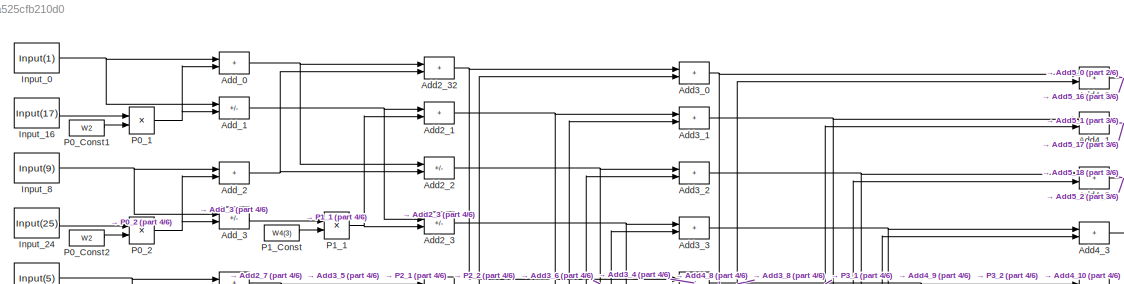
[diagram: root canvas - part 1/6, top left region]
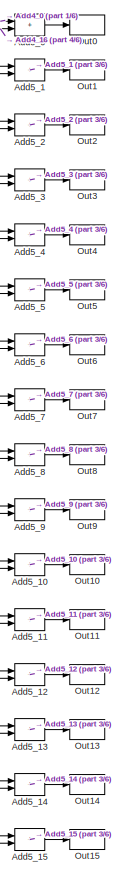
[diagram: root canvas - part 2/6, top right region]
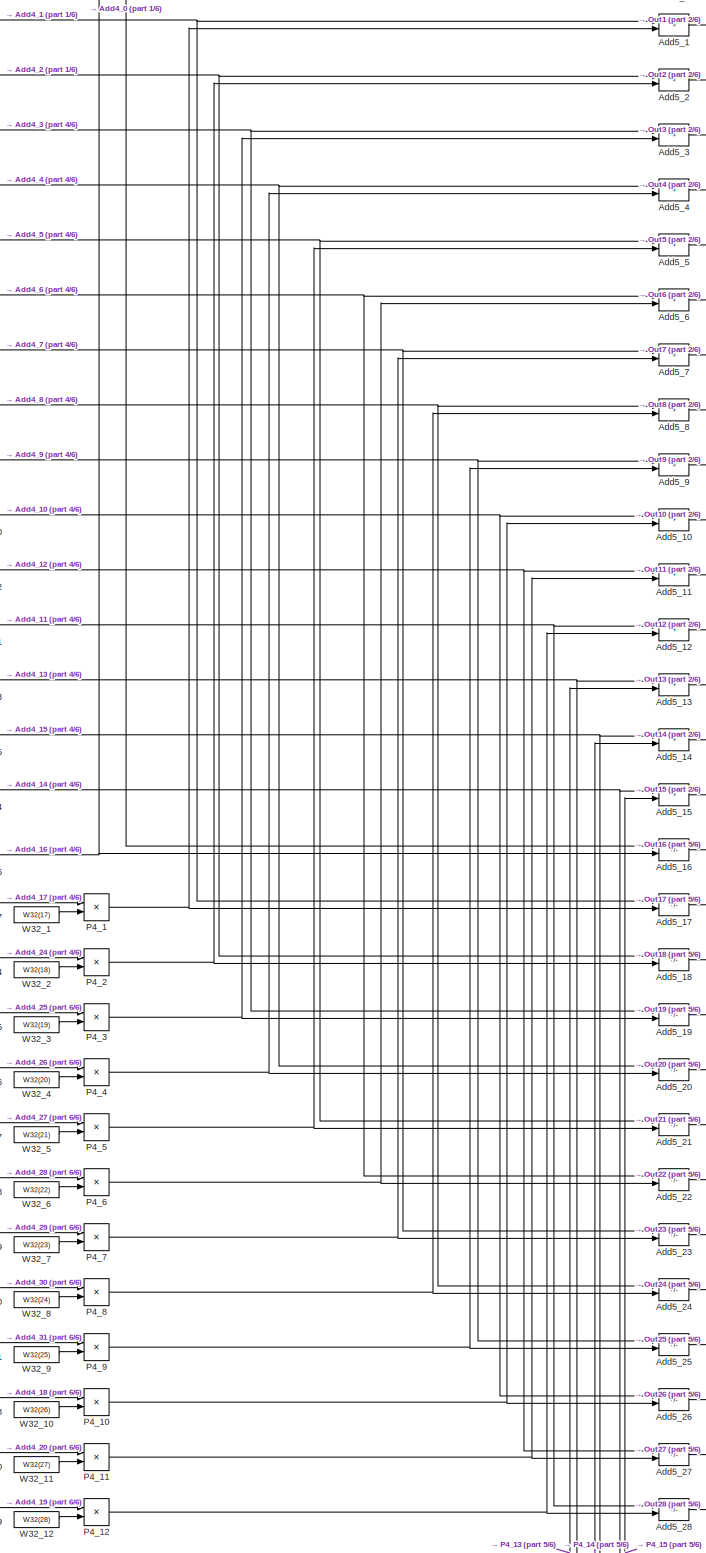
[diagram: root canvas - part 3/6, right side, full height]
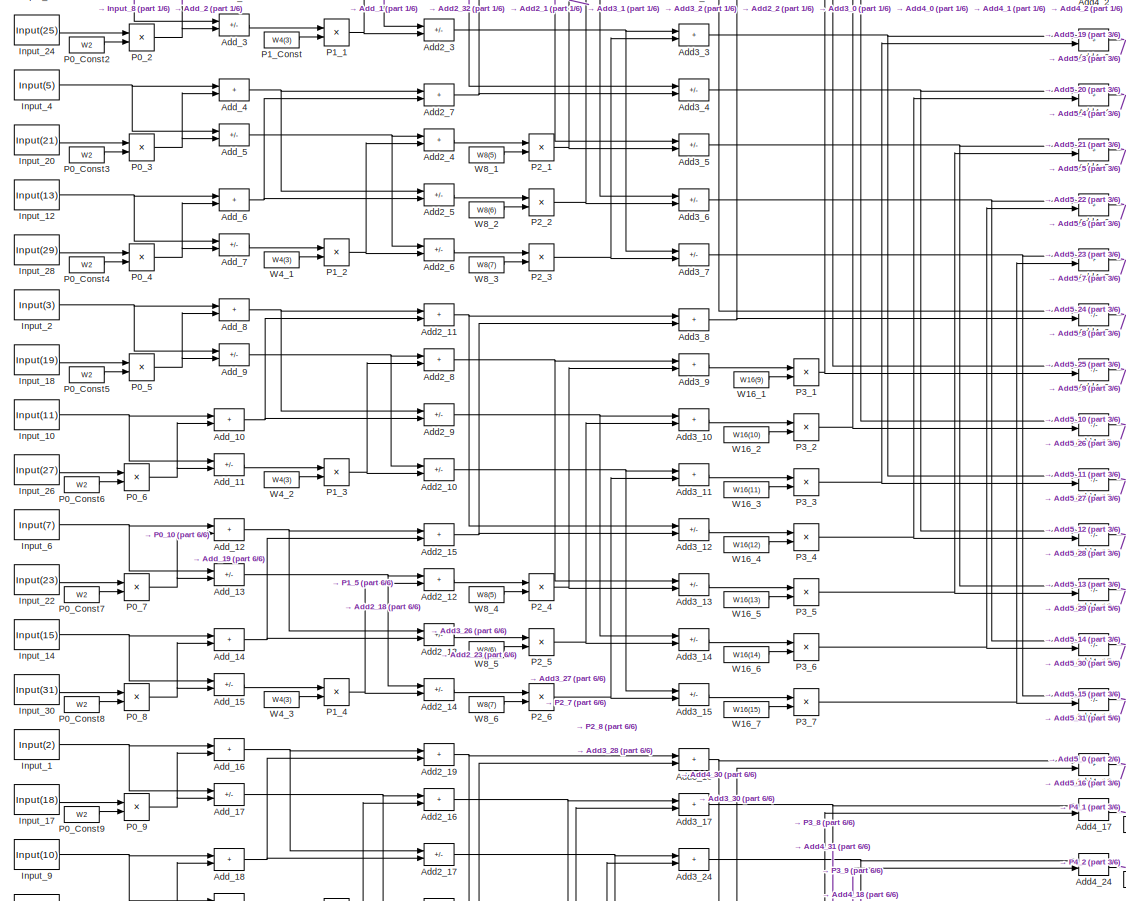
[diagram: root canvas - part 4/6, middle left region]
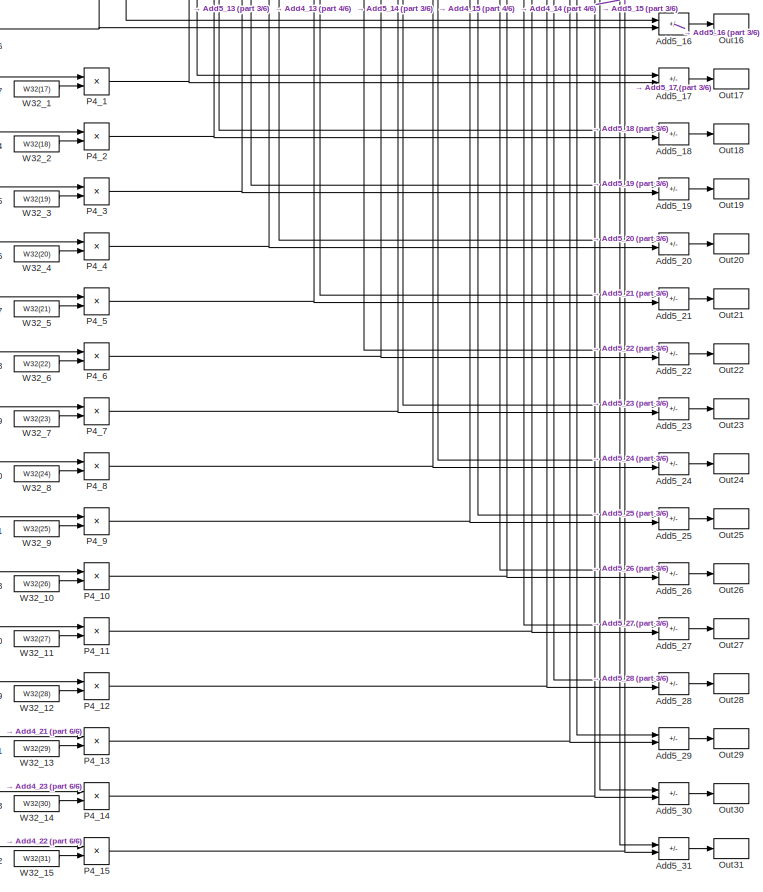
[diagram: root canvas - part 5/6, bottom right region]
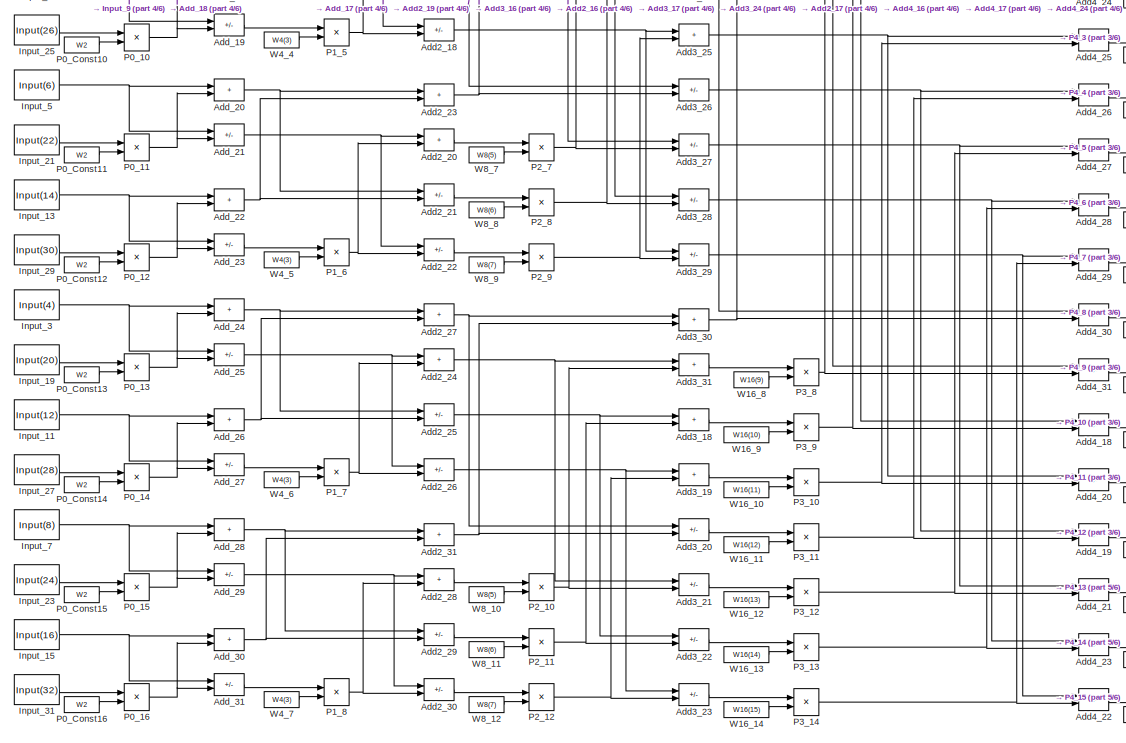
[diagram: root canvas - part 6/6, bottom left region]
MODEL slx_a525cfb210d0
KIND model
CONFIG AbsTol = auto
CONFIG EnableMultiTasking = off
CONFIG FixedStep = auto
CONFIG MaxStep = auto
CONFIG MinStep = auto
CONFIG RelTol = 1e-3
CONFIG SampleTimeConstraint = Unconstrained
CONFIG SolverName = VariableStepAuto
CONFIG StartTime = 0.0
CONFIG StopTime = 0.00001
BLOCK [Sum] Add2_1
  AccumDataTypeStr = fixdt(1,N_bits,W_bits-1)
  IconShape = rectangular
  InputSameDT = on
  OutDataTypeStr = fixdt(1,N_bits,W_bits-1)
  Ports = [2, 1]
BLOCK [Sum] Add2_10
  AccumDataTypeStr = fixdt(1,N_bits,W_bits-1)
  IconShape = rectangular
  Inputs = +-
  OutDataTypeStr = fixdt(1,N_bits,W_bits-1)
  Ports = [2, 1]
BLOCK [Sum] Add2_11
  AccumDataTypeStr = fixdt(1,N_bits,W_bits-1)
  IconShape = rectangular
  OutDataTypeStr = fixdt(1,N_bits,W_bits-1)
  Ports = [2, 1]
BLOCK [Sum] Add2_12
  AccumDataTypeStr = fixdt(1,N_bits,W_bits-1)
  IconShape = rectangular
  InputSameDT = on
  OutDataTypeStr = fixdt(1,N_bits,W_bits-1)
  Ports = [2, 1]
BLOCK [Sum] Add2_13
  AccumDataTypeStr = fixdt(1,N_bits,W_bits-1)
  IconShape = rectangular
  Inputs = +-
  OutDataTypeStr = fixdt(1,N_bits,W_bits-1)
  Ports = [2, 1]
BLOCK [Sum] Add2_14
  AccumDataTypeStr = fixdt(1,N_bits,W_bits-1)
  IconShape = rectangular
  Inputs = +-
  OutDataTypeStr = fixdt(1,N_bits,W_bits-1)
  Ports = [2, 1]
BLOCK [Sum] Add2_15
  AccumDataTypeStr = fixdt(1,N_bits,W_bits-1)
  IconShape = rectangular
  OutDataTypeStr = fixdt(1,N_bits,W_bits-1)
  Ports = [2, 1]
BLOCK [Sum] Add2_16
  AccumDataTypeStr = fixdt(1,N_bits,W_bits-1)
  IconShape = rectangular
  InputSameDT = on
  OutDataTypeStr = fixdt(1,N_bits,W_bits-1)
  Ports = [2, 1]
BLOCK [Sum] Add2_17
  AccumDataTypeStr = fixdt(1,N_bits,W_bits-1)
  IconShape = rectangular
  Inputs = +-
  OutDataTypeStr = fixdt(1,N_bits,W_bits-1)
  Ports = [2, 1]
BLOCK [Sum] Add2_18
  AccumDataTypeStr = fixdt(1,N_bits,W_bits-1)
  IconShape = rectangular
  Inputs = +-
  OutDataTypeStr = fixdt(1,N_bits,W_bits-1)
  Ports = [2, 1]
BLOCK [Sum] Add2_19
  AccumDataTypeStr = fixdt(1,N_bits,W_bits-1)
  IconShape = rectangular
  OutDataTypeStr = fixdt(1,N_bits,W_bits-1)
  Ports = [2, 1]
BLOCK [Sum] Add2_2
  AccumDataTypeStr = fixdt(1,N_bits,W_bits-1)
  IconShape = rectangular
  Inputs = +-
  OutDataTypeStr = fixdt(1,N_bits,W_bits-1)
  Ports = [2, 1]
BLOCK [Sum] Add2_20
  AccumDataTypeStr = fixdt(1,N_bits,W_bits-1)
  IconShape = rectangular
  InputSameDT = on
  OutDataTypeStr = fixdt(1,N_bits,W_bits-1)
  Ports = [2, 1]
BLOCK [Sum] Add2_21
  AccumDataTypeStr = fixdt(1,N_bits,W_bits-1)
  IconShape = rectangular
  Inputs = +-
  OutDataTypeStr = fixdt(1,N_bits,W_bits-1)
  Ports = [2, 1]
BLOCK [Sum] Add2_22
  AccumDataTypeStr = fixdt(1,N_bits,W_bits-1)
  IconShape = rectangular
  Inputs = +-
  OutDataTypeStr = fixdt(1,N_bits,W_bits-1)
  Ports = [2, 1]
BLOCK [Sum] Add2_23
  AccumDataTypeStr = fixdt(1,N_bits,W_bits-1)
  IconShape = rectangular
  OutDataTypeStr = fixdt(1,N_bits,W_bits-1)
  Ports = [2, 1]
BLOCK [Sum] Add2_24
  AccumDataTypeStr = fixdt(1,N_bits,W_bits-1)
  IconShape = rectangular
  InputSameDT = on
  OutDataTypeStr = fixdt(1,N_bits,W_bits-1)
  Ports = [2, 1]
BLOCK [Sum] Add2_25
  AccumDataTypeStr = fixdt(1,N_bits,W_bits-1)
  IconShape = rectangular
  Inputs = +-
  OutDataTypeStr = fixdt(1,N_bits,W_bits-1)
  Ports = [2, 1]
BLOCK [Sum] Add2_26
  AccumDataTypeStr = fixdt(1,N_bits,W_bits-1)
  IconShape = rectangular
  Inputs = +-
  OutDataTypeStr = fixdt(1,N_bits,W_bits-1)
  Ports = [2, 1]
BLOCK [Sum] Add2_27
  AccumDataTypeStr = fixdt(1,N_bits,W_bits-1)
  IconShape = rectangular
  OutDataTypeStr = fixdt(1,N_bits,W_bits-1)
  Ports = [2, 1]
BLOCK [Sum] Add2_28
  AccumDataTypeStr = fixdt(1,N_bits,W_bits-1)
  IconShape = rectangular
  InputSameDT = on
  OutDataTypeStr = fixdt(1,N_bits,W_bits-1)
  Ports = [2, 1]
BLOCK [Sum] Add2_29
  AccumDataTypeStr = fixdt(1,N_bits,W_bits-1)
  IconShape = rectangular
  Inputs = +-
  OutDataTypeStr = fixdt(1,N_bits,W_bits-1)
  Ports = [2, 1]
BLOCK [Sum] Add2_3
  AccumDataTypeStr = fixdt(1,N_bits,W_bits-1)
  IconShape = rectangular
  Inputs = +-
  OutDataTypeStr = fixdt(1,N_bits,W_bits-1)
  Ports = [2, 1]
BLOCK [Sum] Add2_30
  AccumDataTypeStr = fixdt(1,N_bits,W_bits-1)
  IconShape = rectangular
  Inputs = +-
  OutDataTypeStr = fixdt(1,N_bits,W_bits-1)
  Ports = [2, 1]
BLOCK [Sum] Add2_31
  AccumDataTypeStr = fixdt(1,N_bits,W_bits-1)
  IconShape = rectangular
  OutDataTypeStr = fixdt(1,N_bits,W_bits-1)
  Ports = [2, 1]
BLOCK [Sum] Add2_32
  AccumDataTypeStr = fixdt(1,N_bits,W_bits-1)
  IconShape = rectangular
  OutDataTypeStr = fixdt(1,N_bits,W_bits-1)
  Ports = [2, 1]
BLOCK [Sum] Add2_4
  AccumDataTypeStr = fixdt(1,N_bits,W_bits-1)
  IconShape = rectangular
  InputSameDT = on
  OutDataTypeStr = fixdt(1,N_bits,W_bits-1)
  Ports = [2, 1]
BLOCK [Sum] Add2_5
  AccumDataTypeStr = fixdt(1,N_bits,W_bits-1)
  IconShape = rectangular
  Inputs = +-
  OutDataTypeStr = fixdt(1,N_bits,W_bits-1)
  Ports = [2, 1]
BLOCK [Sum] Add2_6
  AccumDataTypeStr = fixdt(1,N_bits,W_bits-1)
  IconShape = rectangular
  Inputs = +-
  OutDataTypeStr = fixdt(1,N_bits,W_bits-1)
  Ports = [2, 1]
BLOCK [Sum] Add2_7
  AccumDataTypeStr = fixdt(1,N_bits,W_bits-1)
  IconShape = rectangular
  OutDataTypeStr = fixdt(1,N_bits,W_bits-1)
  Ports = [2, 1]
BLOCK [Sum] Add2_8
  AccumDataTypeStr = fixdt(1,N_bits,W_bits-1)
  IconShape = rectangular
  InputSameDT = on
  OutDataTypeStr = fixdt(1,N_bits,W_bits-1)
  Ports = [2, 1]
BLOCK [Sum] Add2_9
  AccumDataTypeStr = fixdt(1,N_bits,W_bits-1)
  IconShape = rectangular
  Inputs = +-
  OutDataTypeStr = fixdt(1,N_bits,W_bits-1)
  Ports = [2, 1]
BLOCK [Sum] Add3_0
  AccumDataTypeStr = fixdt(1,N_bits,W_bits-1)
  IconShape = rectangular
  OutDataTypeStr = fixdt(1,N_bits,W_bits-1)
  Ports = [2, 1]
BLOCK [Sum] Add3_1
  AccumDataTypeStr = fixdt(1,N_bits,W_bits-1)
  IconShape = rectangular
  OutDataTypeStr = fixdt(1,N_bits,W_bits-1)
  Ports = [2, 1]
BLOCK [Sum] Add3_10
  AccumDataTypeStr = fixdt(1,N_bits,W_bits-1)
  IconShape = rectangular
  OutDataTypeStr = fixdt(1,N_bits,W_bits-1)
  Ports = [2, 1]
BLOCK [Sum] Add3_11
  AccumDataTypeStr = fixdt(1,N_bits,W_bits-1)
  IconShape = rectangular
  OutDataTypeStr = fixdt(1,N_bits,W_bits-1)
  Ports = [2, 1]
BLOCK [Sum] Add3_12
  AccumDataTypeStr = fixdt(1,N_bits,W_bits-1)
  IconShape = rectangular
  Inputs = +-
  OutDataTypeStr = fixdt(1,N_bits,W_bits-1)
  Ports = [2, 1]
BLOCK [Sum] Add3_13
  AccumDataTypeStr = fixdt(1,N_bits,W_bits-1)
  IconShape = rectangular
  Inputs = +-
  OutDataTypeStr = fixdt(1,N_bits,W_bits-1)
  Ports = [2, 1]
BLOCK [Sum] Add3_14
  AccumDataTypeStr = fixdt(1,N_bits,W_bits-1)
  IconShape = rectangular
  Inputs = +-
  OutDataTypeStr = fixdt(1,N_bits,W_bits-1)
  Ports = [2, 1]
BLOCK [Sum] Add3_15
  AccumDataTypeStr = fixdt(1,N_bits,W_bits-1)
  IconShape = rectangular
  Inputs = +-
  OutDataTypeStr = fixdt(1,N_bits,W_bits-1)
  Ports = [2, 1]
BLOCK [Sum] Add3_16
  AccumDataTypeStr = fixdt(1,N_bits,W_bits-1)
  IconShape = rectangular
  OutDataTypeStr = fixdt(1,N_bits,W_bits-1)
  Ports = [2, 1]
BLOCK [Sum] Add3_17
  AccumDataTypeStr = fixdt(1,N_bits,W_bits-1)
  IconShape = rectangular
  OutDataTypeStr = fixdt(1,N_bits,W_bits-1)
  Ports = [2, 1]
BLOCK [Sum] Add3_18
  AccumDataTypeStr = fixdt(1,N_bits,W_bits-1)
  IconShape = rectangular
  OutDataTypeStr = fixdt(1,N_bits,W_bits-1)
  Ports = [2, 1]
BLOCK [Sum] Add3_19
  AccumDataTypeStr = fixdt(1,N_bits,W_bits-1)
  IconShape = rectangular
  OutDataTypeStr = fixdt(1,N_bits,W_bits-1)
  Ports = [2, 1]
BLOCK [Sum] Add3_2
  AccumDataTypeStr = fixdt(1,N_bits,W_bits-1)
  IconShape = rectangular
  OutDataTypeStr = fixdt(1,N_bits,W_bits-1)
  Ports = [2, 1]
BLOCK [Sum] Add3_20
  AccumDataTypeStr = fixdt(1,N_bits,W_bits-1)
  IconShape = rectangular
  Inputs = +-
  OutDataTypeStr = fixdt(1,N_bits,W_bits-1)
  Ports = [2, 1]
BLOCK [Sum] Add3_21
  AccumDataTypeStr = fixdt(1,N_bits,W_bits-1)
  IconShape = rectangular
  Inputs = +-
  OutDataTypeStr = fixdt(1,N_bits,W_bits-1)
  Ports = [2, 1]
BLOCK [Sum] Add3_22
  AccumDataTypeStr = fixdt(1,N_bits,W_bits-1)
  IconShape = rectangular
  Inputs = +-
  OutDataTypeStr = fixdt(1,N_bits,W_bits-1)
  Ports = [2, 1]
BLOCK [Sum] Add3_23
  AccumDataTypeStr = fixdt(1,N_bits,W_bits-1)
  IconShape = rectangular
  Inputs = +-
  OutDataTypeStr = fixdt(1,N_bits,W_bits-1)
  Ports = [2, 1]
BLOCK [Sum] Add3_24
  AccumDataTypeStr = fixdt(1,N_bits,W_bits-1)
  IconShape = rectangular
  OutDataTypeStr = fixdt(1,N_bits,W_bits-1)
  Ports = [2, 1]
BLOCK [Sum] Add3_25
  AccumDataTypeStr = fixdt(1,N_bits,W_bits-1)
  IconShape = rectangular
  OutDataTypeStr = fixdt(1,N_bits,W_bits-1)
  Ports = [2, 1]
BLOCK [Sum] Add3_26
  AccumDataTypeStr = fixdt(1,N_bits,W_bits-1)
  IconShape = rectangular
  Inputs = +-
  OutDataTypeStr = fixdt(1,N_bits,W_bits-1)
  Ports = [2, 1]
BLOCK [Sum] Add3_27
  AccumDataTypeStr = fixdt(1,N_bits,W_bits-1)
  IconShape = rectangular
  Inputs = +-
  OutDataTypeStr = fixdt(1,N_bits,W_bits-1)
  Ports = [2, 1]
BLOCK [Sum] Add3_28
  AccumDataTypeStr = fixdt(1,N_bits,W_bits-1)
  IconShape = rectangular
  Inputs = +-
  OutDataTypeStr = fixdt(1,N_bits,W_bits-1)
  Ports = [2, 1]
BLOCK [Sum] Add3_29
  AccumDataTypeStr = fixdt(1,N_bits,W_bits-1)
  IconShape = rectangular
  Inputs = +-
  OutDataTypeStr = fixdt(1,N_bits,W_bits-1)
  Ports = [2, 1]
BLOCK [Sum] Add3_3
  AccumDataTypeStr = fixdt(1,N_bits,W_bits-1)
  IconShape = rectangular
  OutDataTypeStr = fixdt(1,N_bits,W_bits-1)
  Ports = [2, 1]
BLOCK [Sum] Add3_30
  AccumDataTypeStr = fixdt(1,N_bits,W_bits-1)
  IconShape = rectangular
  OutDataTypeStr = fixdt(1,N_bits,W_bits-1)
  Ports = [2, 1]
BLOCK [Sum] Add3_31
  AccumDataTypeStr = fixdt(1,N_bits,W_bits-1)
  IconShape = rectangular
  OutDataTypeStr = fixdt(1,N_bits,W_bits-1)
  Ports = [2, 1]
BLOCK [Sum] Add3_4
  AccumDataTypeStr = fixdt(1,N_bits,W_bits-1)
  IconShape = rectangular
  Inputs = +-
  OutDataTypeStr = fixdt(1,N_bits,W_bits-1)
  Ports = [2, 1]
BLOCK [Sum] Add3_5
  AccumDataTypeStr = fixdt(1,N_bits,W_bits-1)
  IconShape = rectangular
  Inputs = +-
  OutDataTypeStr = fixdt(1,N_bits,W_bits-1)
  Ports = [2, 1]
BLOCK [Sum] Add3_6
  AccumDataTypeStr = fixdt(1,N_bits,W_bits-1)
  IconShape = rectangular
  Inputs = +-
  OutDataTypeStr = fixdt(1,N_bits,W_bits-1)
  Ports = [2, 1]
BLOCK [Sum] Add3_7
  AccumDataTypeStr = fixdt(1,N_bits,W_bits-1)
  IconShape = rectangular
  Inputs = +-
  OutDataTypeStr = fixdt(1,N_bits,W_bits-1)
  Ports = [2, 1]
BLOCK [Sum] Add3_8
  AccumDataTypeStr = fixdt(1,N_bits,W_bits-1)
  IconShape = rectangular
  OutDataTypeStr = fixdt(1,N_bits,W_bits-1)
  Ports = [2, 1]
BLOCK [Sum] Add3_9
  AccumDataTypeStr = fixdt(1,N_bits,W_bits-1)
  IconShape = rectangular
  OutDataTypeStr = fixdt(1,N_bits,W_bits-1)
  Ports = [2, 1]
BLOCK [Sum] Add4_0
  AccumDataTypeStr = fixdt(1,N_bits,W_bits-1)
  IconShape = rectangular
  OutDataTypeStr = fixdt(1,N_bits,W_bits-1)
  Ports = [2, 1]
BLOCK [Sum] Add4_1
  AccumDataTypeStr = fixdt(1,N_bits,W_bits-1)
  IconShape = rectangular
  OutDataTypeStr = fixdt(1,N_bits,W_bits-1)
  Ports = [2, 1]
BLOCK [Sum] Add4_10
  AccumDataTypeStr = fixdt(1,N_bits,W_bits-1)
  IconShape = rectangular
  Inputs = +-
  OutDataTypeStr = fixdt(1,N_bits,W_bits-1)
  Ports = [2, 1]
BLOCK [Sum] Add4_11
  AccumDataTypeStr = fixdt(1,N_bits,W_bits-1)
  IconShape = rectangular
  Inputs = +-
  OutDataTypeStr = fixdt(1,N_bits,W_bits-1)
  Ports = [2, 1]
BLOCK [Sum] Add4_12
  AccumDataTypeStr = fixdt(1,N_bits,W_bits-1)
  IconShape = rectangular
  Inputs = +-
  OutDataTypeStr = fixdt(1,N_bits,W_bits-1)
  Ports = [2, 1]
BLOCK [Sum] Add4_13
  AccumDataTypeStr = fixdt(1,N_bits,W_bits-1)
  IconShape = rectangular
  Inputs = +-
  OutDataTypeStr = fixdt(1,N_bits,W_bits-1)
  Ports = [2, 1]
BLOCK [Sum] Add4_14
  AccumDataTypeStr = fixdt(1,N_bits,W_bits-1)
  IconShape = rectangular
  Inputs = +-
  OutDataTypeStr = fixdt(1,N_bits,W_bits-1)
  Ports = [2, 1]
BLOCK [Sum] Add4_15
  AccumDataTypeStr = fixdt(1,N_bits,W_bits-1)
  IconShape = rectangular
  Inputs = +-
  OutDataTypeStr = fixdt(1,N_bits,W_bits-1)
  Ports = [2, 1]
BLOCK [Sum] Add4_16
  AccumDataTypeStr = fixdt(1,N_bits,W_bits-1)
  IconShape = rectangular
  OutDataTypeStr = fixdt(1,N_bits,W_bits-1)
  Ports = [2, 1]
BLOCK [Sum] Add4_17
  AccumDataTypeStr = fixdt(1,N_bits,W_bits-1)
  IconShape = rectangular
  OutDataTypeStr = fixdt(1,N_bits,W_bits-1)
  Ports = [2, 1]
BLOCK [Sum] Add4_18
  AccumDataTypeStr = fixdt(1,N_bits,W_bits-1)
  IconShape = rectangular
  Inputs = +-
  OutDataTypeStr = fixdt(1,N_bits,W_bits-1)
  Ports = [2, 1]
BLOCK [Sum] Add4_19
  AccumDataTypeStr = fixdt(1,N_bits,W_bits-1)
  IconShape = rectangular
  Inputs = +-
  OutDataTypeStr = fixdt(1,N_bits,W_bits-1)
  Ports = [2, 1]
BLOCK [Sum] Add4_2
  AccumDataTypeStr = fixdt(1,N_bits,W_bits-1)
  IconShape = rectangular
  OutDataTypeStr = fixdt(1,N_bits,W_bits-1)
  Ports = [2, 1]
BLOCK [Sum] Add4_20
  AccumDataTypeStr = fixdt(1,N_bits,W_bits-1)
  IconShape = rectangular
  Inputs = +-
  OutDataTypeStr = fixdt(1,N_bits,W_bits-1)
  Ports = [2, 1]
BLOCK [Sum] Add4_21
  AccumDataTypeStr = fixdt(1,N_bits,W_bits-1)
  IconShape = rectangular
  Inputs = +-
  OutDataTypeStr = fixdt(1,N_bits,W_bits-1)
  Ports = [2, 1]
BLOCK [Sum] Add4_22
  AccumDataTypeStr = fixdt(1,N_bits,W_bits-1)
  IconShape = rectangular
  Inputs = +-
  OutDataTypeStr = fixdt(1,N_bits,W_bits-1)
  Ports = [2, 1]
BLOCK [Sum] Add4_23
  AccumDataTypeStr = fixdt(1,N_bits,W_bits-1)
  IconShape = rectangular
  Inputs = +-
  OutDataTypeStr = fixdt(1,N_bits,W_bits-1)
  Ports = [2, 1]
BLOCK [Sum] Add4_24
  AccumDataTypeStr = fixdt(1,N_bits,W_bits-1)
  IconShape = rectangular
  OutDataTypeStr = fixdt(1,N_bits,W_bits-1)
  Ports = [2, 1]
BLOCK [Sum] Add4_25
  AccumDataTypeStr = fixdt(1,N_bits,W_bits-1)
  IconShape = rectangular
  OutDataTypeStr = fixdt(1,N_bits,W_bits-1)
  Ports = [2, 1]
BLOCK [Sum] Add4_26
  AccumDataTypeStr = fixdt(1,N_bits,W_bits-1)
  IconShape = rectangular
  OutDataTypeStr = fixdt(1,N_bits,W_bits-1)
  Ports = [2, 1]
BLOCK [Sum] Add4_27
  AccumDataTypeStr = fixdt(1,N_bits,W_bits-1)
  IconShape = rectangular
  OutDataTypeStr = fixdt(1,N_bits,W_bits-1)
  Ports = [2, 1]
BLOCK [Sum] Add4_28
  AccumDataTypeStr = fixdt(1,N_bits,W_bits-1)
  IconShape = rectangular
  OutDataTypeStr = fixdt(1,N_bits,W_bits-1)
  Ports = [2, 1]
BLOCK [Sum] Add4_29
  AccumDataTypeStr = fixdt(1,N_bits,W_bits-1)
  IconShape = rectangular
  OutDataTypeStr = fixdt(1,N_bits,W_bits-1)
  Ports = [2, 1]
BLOCK [Sum] Add4_3
  AccumDataTypeStr = fixdt(1,N_bits,W_bits-1)
  IconShape = rectangular
  OutDataTypeStr = fixdt(1,N_bits,W_bits-1)
  Ports = [2, 1]
BLOCK [Sum] Add4_30
  AccumDataTypeStr = fixdt(1,N_bits,W_bits-1)
  IconShape = rectangular
  Inputs = +-
  OutDataTypeStr = fixdt(1,N_bits,W_bits-1)
  Ports = [2, 1]
BLOCK [Sum] Add4_31
  AccumDataTypeStr = fixdt(1,N_bits,W_bits-1)
  IconShape = rectangular
  Inputs = +-
  OutDataTypeStr = fixdt(1,N_bits,W_bits-1)
  Ports = [2, 1]
BLOCK [Sum] Add4_4
  AccumDataTypeStr = fixdt(1,N_bits,W_bits-1)
  IconShape = rectangular
  OutDataTypeStr = fixdt(1,N_bits,W_bits-1)
  Ports = [2, 1]
BLOCK [Sum] Add4_5
  AccumDataTypeStr = fixdt(1,N_bits,W_bits-1)
  IconShape = rectangular
  OutDataTypeStr = fixdt(1,N_bits,W_bits-1)
  Ports = [2, 1]
BLOCK [Sum] Add4_6
  AccumDataTypeStr = fixdt(1,N_bits,W_bits-1)
  IconShape = rectangular
  OutDataTypeStr = fixdt(1,N_bits,W_bits-1)
  Ports = [2, 1]
BLOCK [Sum] Add4_7
  AccumDataTypeStr = fixdt(1,N_bits,W_bits-1)
  IconShape = rectangular
  OutDataTypeStr = fixdt(1,N_bits,W_bits-1)
  Ports = [2, 1]
BLOCK [Sum] Add4_8
  AccumDataTypeStr = fixdt(1,N_bits,W_bits-1)
  IconShape = rectangular
  Inputs = +-
  OutDataTypeStr = fixdt(1,N_bits,W_bits-1)
  Ports = [2, 1]
BLOCK [Sum] Add4_9
  AccumDataTypeStr = fixdt(1,N_bits,W_bits-1)
  IconShape = rectangular
  Inputs = +-
  OutDataTypeStr = fixdt(1,N_bits,W_bits-1)
  Ports = [2, 1]
BLOCK [Sum] Add5_0
  AccumDataTypeStr = fixdt(1,N_bits,W_bits-1)
  IconShape = rectangular
  OutDataTypeStr = fixdt(1,N_bits,W_bits-1)
  Ports = [2, 1]
BLOCK [Sum] Add5_1
  AccumDataTypeStr = fixdt(1,N_bits,W_bits-1)
  IconShape = rectangular
  OutDataTypeStr = fixdt(1,N_bits,W_bits-1)
  Ports = [2, 1]
BLOCK [Sum] Add5_10
  AccumDataTypeStr = fixdt(1,N_bits,W_bits-1)
  IconShape = rectangular
  OutDataTypeStr = fixdt(1,N_bits,W_bits-1)
  Ports = [2, 1]
BLOCK [Sum] Add5_11
  AccumDataTypeStr = fixdt(1,N_bits,W_bits-1)
  IconShape = rectangular
  OutDataTypeStr = fixdt(1,N_bits,W_bits-1)
  Ports = [2, 1]
BLOCK [Sum] Add5_12
  AccumDataTypeStr = fixdt(1,N_bits,W_bits-1)
  IconShape = rectangular
  OutDataTypeStr = fixdt(1,N_bits,W_bits-1)
  Ports = [2, 1]
BLOCK [Sum] Add5_13
  AccumDataTypeStr = fixdt(1,N_bits,W_bits-1)
  IconShape = rectangular
  OutDataTypeStr = fixdt(1,N_bits,W_bits-1)
  Ports = [2, 1]
BLOCK [Sum] Add5_14
  AccumDataTypeStr = fixdt(1,N_bits,W_bits-1)
  IconShape = rectangular
  OutDataTypeStr = fixdt(1,N_bits,W_bits-1)
  Ports = [2, 1]
BLOCK [Sum] Add5_15
  AccumDataTypeStr = fixdt(1,N_bits,W_bits-1)
  IconShape = rectangular
  OutDataTypeStr = fixdt(1,N_bits,W_bits-1)
  Ports = [2, 1]
BLOCK [Sum] Add5_16
  AccumDataTypeStr = fixdt(1,N_bits,W_bits-1)
  IconShape = rectangular
  Inputs = +-
  OutDataTypeStr = fixdt(1,N_bits,W_bits-1)
  Ports = [2, 1]
BLOCK [Sum] Add5_17
  AccumDataTypeStr = fixdt(1,N_bits,W_bits-1)
  IconShape = rectangular
  Inputs = +-
  OutDataTypeStr = fixdt(1,N_bits,W_bits-1)
  Ports = [2, 1]
BLOCK [Sum] Add5_18
  AccumDataTypeStr = fixdt(1,N_bits,W_bits-1)
  IconShape = rectangular
  Inputs = +-
  OutDataTypeStr = fixdt(1,N_bits,W_bits-1)
  Ports = [2, 1]
BLOCK [Sum] Add5_19
  AccumDataTypeStr = fixdt(1,N_bits,W_bits-1)
  IconShape = rectangular
  Inputs = +-
  OutDataTypeStr = fixdt(1,N_bits,W_bits-1)
  Ports = [2, 1]
BLOCK [Sum] Add5_2
  AccumDataTypeStr = fixdt(1,N_bits,W_bits-1)
  IconShape = rectangular
  OutDataTypeStr = fixdt(1,N_bits,W_bits-1)
  Ports = [2, 1]
BLOCK [Sum] Add5_20
  AccumDataTypeStr = fixdt(1,N_bits,W_bits-1)
  IconShape = rectangular
  Inputs = +-
  OutDataTypeStr = fixdt(1,N_bits,W_bits-1)
  Ports = [2, 1]
BLOCK [Sum] Add5_21
  AccumDataTypeStr = fixdt(1,N_bits,W_bits-1)
  IconShape = rectangular
  Inputs = +-
  OutDataTypeStr = fixdt(1,N_bits,W_bits-1)
  Ports = [2, 1]
BLOCK [Sum] Add5_22
  AccumDataTypeStr = fixdt(1,N_bits,W_bits-1)
  IconShape = rectangular
  Inputs = +-
  OutDataTypeStr = fixdt(1,N_bits,W_bits-1)
  Ports = [2, 1]
BLOCK [Sum] Add5_23
  AccumDataTypeStr = fixdt(1,N_bits,W_bits-1)
  IconShape = rectangular
  Inputs = +-
  OutDataTypeStr = fixdt(1,N_bits,W_bits-1)
  Ports = [2, 1]
BLOCK [Sum] Add5_24
  AccumDataTypeStr = fixdt(1,N_bits,W_bits-1)
  IconShape = rectangular
  Inputs = +-
  OutDataTypeStr = fixdt(1,N_bits,W_bits-1)
  Ports = [2, 1]
BLOCK [Sum] Add5_25
  AccumDataTypeStr = fixdt(1,N_bits,W_bits-1)
  IconShape = rectangular
  Inputs = +-
  OutDataTypeStr = fixdt(1,N_bits,W_bits-1)
  Ports = [2, 1]
BLOCK [Sum] Add5_26
  AccumDataTypeStr = fixdt(1,N_bits,W_bits-1)
  IconShape = rectangular
  Inputs = +-
  OutDataTypeStr = fixdt(1,N_bits,W_bits-1)
  Ports = [2, 1]
BLOCK [Sum] Add5_27
  AccumDataTypeStr = fixdt(1,N_bits,W_bits-1)
  IconShape = rectangular
  Inputs = +-
  OutDataTypeStr = fixdt(1,N_bits,W_bits-1)
  Ports = [2, 1]
BLOCK [Sum] Add5_28
  AccumDataTypeStr = fixdt(1,N_bits,W_bits-1)
  IconShape = rectangular
  Inputs = +-
  OutDataTypeStr = fixdt(1,N_bits,W_bits-1)
  Ports = [2, 1]
BLOCK [Sum] Add5_29
  AccumDataTypeStr = fixdt(1,N_bits,W_bits-1)
  IconShape = rectangular
  Inputs = +-
  OutDataTypeStr = fixdt(1,N_bits,W_bits-1)
  Ports = [2, 1]
BLOCK [Sum] Add5_3
  AccumDataTypeStr = fixdt(1,N_bits,W_bits-1)
  IconShape = rectangular
  OutDataTypeStr = fixdt(1,N_bits,W_bits-1)
  Ports = [2, 1]
BLOCK [Sum] Add5_30
  AccumDataTypeStr = fixdt(1,N_bits,W_bits-1)
  IconShape = rectangular
  Inputs = +-
  OutDataTypeStr = fixdt(1,N_bits,W_bits-1)
  Ports = [2, 1]
BLOCK [Sum] Add5_31
  AccumDataTypeStr = fixdt(1,N_bits,W_bits-1)
  IconShape = rectangular
  Inputs = +-
  OutDataTypeStr = fixdt(1,N_bits,W_bits-1)
  Ports = [2, 1]
BLOCK [Sum] Add5_4
  AccumDataTypeStr = fixdt(1,N_bits,W_bits-1)
  IconShape = rectangular
  OutDataTypeStr = fixdt(1,N_bits,W_bits-1)
  Ports = [2, 1]
BLOCK [Sum] Add5_5
  AccumDataTypeStr = fixdt(1,N_bits,W_bits-1)
  IconShape = rectangular
  OutDataTypeStr = fixdt(1,N_bits,W_bits-1)
  Ports = [2, 1]
BLOCK [Sum] Add5_6
  AccumDataTypeStr = fixdt(1,N_bits,W_bits-1)
  IconShape = rectangular
  OutDataTypeStr = fixdt(1,N_bits,W_bits-1)
  Ports = [2, 1]
BLOCK [Sum] Add5_7
  AccumDataTypeStr = fixdt(1,N_bits,W_bits-1)
  IconShape = rectangular
  OutDataTypeStr = fixdt(1,N_bits,W_bits-1)
  Ports = [2, 1]
BLOCK [Sum] Add5_8
  AccumDataTypeStr = fixdt(1,N_bits,W_bits-1)
  IconShape = rectangular
  OutDataTypeStr = fixdt(1,N_bits,W_bits-1)
  Ports = [2, 1]
BLOCK [Sum] Add5_9
  AccumDataTypeStr = fixdt(1,N_bits,W_bits-1)
  IconShape = rectangular
  OutDataTypeStr = fixdt(1,N_bits,W_bits-1)
  Ports = [2, 1]
BLOCK [Sum] Add_0
  AccumDataTypeStr = fixdt(1,N_bits,W_bits-1)
  IconShape = rectangular
  OutDataTypeStr = fixdt(1,N_bits,W_bits-1)
  Ports = [2, 1]
BLOCK [Sum] Add_1
  AccumDataTypeStr = fixdt(1,N_bits,W_bits-1)
  IconShape = rectangular
  Inputs = +-
  OutDataTypeStr = fixdt(1,N_bits,W_bits-1)
  Ports = [2, 1]
BLOCK [Sum] Add_10
  AccumDataTypeStr = fixdt(1,N_bits,W_bits-1)
  IconShape = rectangular
  OutDataTypeStr = fixdt(1,N_bits,W_bits-1)
  Ports = [2, 1]
BLOCK [Sum] Add_11
  AccumDataTypeStr = fixdt(1,N_bits,W_bits-1)
  IconShape = rectangular
  Inputs = +-
  OutDataTypeStr = fixdt(1,N_bits,W_bits-1)
  Ports = [2, 1]
BLOCK [Sum] Add_12
  AccumDataTypeStr = fixdt(1,N_bits,W_bits-1)
  IconShape = rectangular
  OutDataTypeStr = fixdt(1,N_bits,W_bits-1)
  Ports = [2, 1]
BLOCK [Sum] Add_13
  AccumDataTypeStr = fixdt(1,N_bits,W_bits-1)
  IconShape = rectangular
  Inputs = +-
  OutDataTypeStr = fixdt(1,N_bits,W_bits-1)
  Ports = [2, 1]
BLOCK [Sum] Add_14
  AccumDataTypeStr = fixdt(1,N_bits,W_bits-1)
  IconShape = rectangular
  OutDataTypeStr = fixdt(1,N_bits,W_bits-1)
  Ports = [2, 1]
BLOCK [Sum] Add_15
  AccumDataTypeStr = fixdt(1,N_bits,W_bits-1)
  IconShape = rectangular
  Inputs = +-
  OutDataTypeStr = fixdt(1,N_bits,W_bits-1)
  Ports = [2, 1]
BLOCK [Sum] Add_16
  AccumDataTypeStr = fixdt(1,N_bits,W_bits-1)
  IconShape = rectangular
  OutDataTypeStr = fixdt(1,N_bits,W_bits-1)
  Ports = [2, 1]
BLOCK [Sum] Add_17
  AccumDataTypeStr = fixdt(1,N_bits,W_bits-1)
  IconShape = rectangular
  Inputs = +-
  OutDataTypeStr = fixdt(1,N_bits,W_bits-1)
  Ports = [2, 1]
BLOCK [Sum] Add_18
  AccumDataTypeStr = fixdt(1,N_bits,W_bits-1)
  IconShape = rectangular
  OutDataTypeStr = fixdt(1,N_bits,W_bits-1)
  Ports = [2, 1]
BLOCK [Sum] Add_19
  AccumDataTypeStr = fixdt(1,N_bits,W_bits-1)
  IconShape = rectangular
  Inputs = +-
  OutDataTypeStr = fixdt(1,N_bits,W_bits-1)
  Ports = [2, 1]
BLOCK [Sum] Add_2
  AccumDataTypeStr = fixdt(1,N_bits,W_bits-1)
  IconShape = rectangular
  OutDataTypeStr = fixdt(1,N_bits,W_bits-1)
  Ports = [2, 1]
BLOCK [Sum] Add_20
  AccumDataTypeStr = fixdt(1,N_bits,W_bits-1)
  IconShape = rectangular
  OutDataTypeStr = fixdt(1,N_bits,W_bits-1)
  Ports = [2, 1]
BLOCK [Sum] Add_21
  AccumDataTypeStr = fixdt(1,N_bits,W_bits-1)
  IconShape = rectangular
  Inputs = +-
  OutDataTypeStr = fixdt(1,N_bits,W_bits-1)
  Ports = [2, 1]
BLOCK [Sum] Add_22
  AccumDataTypeStr = fixdt(1,N_bits,W_bits-1)
  IconShape = rectangular
  OutDataTypeStr = fixdt(1,N_bits,W_bits-1)
  Ports = [2, 1]
BLOCK [Sum] Add_23
  AccumDataTypeStr = fixdt(1,N_bits,W_bits-1)
  IconShape = rectangular
  Inputs = +-
  OutDataTypeStr = fixdt(1,N_bits,W_bits-1)
  Ports = [2, 1]
BLOCK [Sum] Add_24
  AccumDataTypeStr = fixdt(1,N_bits,W_bits-1)
  IconShape = rectangular
  OutDataTypeStr = fixdt(1,N_bits,W_bits-1)
  Ports = [2, 1]
BLOCK [Sum] Add_25
  AccumDataTypeStr = fixdt(1,N_bits,W_bits-1)
  IconShape = rectangular
  Inputs = +-
  OutDataTypeStr = fixdt(1,N_bits,W_bits-1)
  Ports = [2, 1]
BLOCK [Sum] Add_26
  AccumDataTypeStr = fixdt(1,N_bits,W_bits-1)
  IconShape = rectangular
  OutDataTypeStr = fixdt(1,N_bits,W_bits-1)
  Ports = [2, 1]
BLOCK [Sum] Add_27
  AccumDataTypeStr = fixdt(1,N_bits,W_bits-1)
  IconShape = rectangular
  Inputs = +-
  OutDataTypeStr = fixdt(1,N_bits,W_bits-1)
  Ports = [2, 1]
BLOCK [Sum] Add_28
  AccumDataTypeStr = fixdt(1,N_bits,W_bits-1)
  IconShape = rectangular
  OutDataTypeStr = fixdt(1,N_bits,W_bits-1)
  Ports = [2, 1]
BLOCK [Sum] Add_29
  AccumDataTypeStr = fixdt(1,N_bits,W_bits-1)
  IconShape = rectangular
  Inputs = +-
  OutDataTypeStr = fixdt(1,N_bits,W_bits-1)
  Ports = [2, 1]
BLOCK [Sum] Add_3
  AccumDataTypeStr = fixdt(1,N_bits,W_bits-1)
  IconShape = rectangular
  Inputs = +-
  OutDataTypeStr = fixdt(1,N_bits,W_bits-1)
  Ports = [2, 1]
BLOCK [Sum] Add_30
  AccumDataTypeStr = fixdt(1,N_bits,W_bits-1)
  IconShape = rectangular
  OutDataTypeStr = fixdt(1,N_bits,W_bits-1)
  Ports = [2, 1]
BLOCK [Sum] Add_31
  AccumDataTypeStr = fixdt(1,N_bits,W_bits-1)
  IconShape = rectangular
  Inputs = +-
  OutDataTypeStr = fixdt(1,N_bits,W_bits-1)
  Ports = [2, 1]
BLOCK [Sum] Add_4
  AccumDataTypeStr = fixdt(1,N_bits,W_bits-1)
  IconShape = rectangular
  OutDataTypeStr = fixdt(1,N_bits,W_bits-1)
  Ports = [2, 1]
BLOCK [Sum] Add_5
  AccumDataTypeStr = fixdt(1,N_bits,W_bits-1)
  IconShape = rectangular
  Inputs = +-
  OutDataTypeStr = fixdt(1,N_bits,W_bits-1)
  Ports = [2, 1]
BLOCK [Sum] Add_6
  AccumDataTypeStr = fixdt(1,N_bits,W_bits-1)
  IconShape = rectangular
  OutDataTypeStr = fixdt(1,N_bits,W_bits-1)
  Ports = [2, 1]
BLOCK [Sum] Add_7
  AccumDataTypeStr = fixdt(1,N_bits,W_bits-1)
  IconShape = rectangular
  Inputs = +-
  OutDataTypeStr = fixdt(1,N_bits,W_bits-1)
  Ports = [2, 1]
BLOCK [Sum] Add_8
  AccumDataTypeStr = fixdt(1,N_bits,W_bits-1)
  IconShape = rectangular
  OutDataTypeStr = fixdt(1,N_bits,W_bits-1)
  Ports = [2, 1]
BLOCK [Sum] Add_9
  AccumDataTypeStr = fixdt(1,N_bits,W_bits-1)
  IconShape = rectangular
  Inputs = +-
  OutDataTypeStr = fixdt(1,N_bits,W_bits-1)
  Ports = [2, 1]
BLOCK [Constant] Input_0
  Value = Input(1)
BLOCK [Constant] Input_1
  Value = Input(2)
BLOCK [Constant] Input_10
  Value = Input(11)
BLOCK [Constant] Input_11
  Value = Input(12)
BLOCK [Constant] Input_12
  Value = Input(13)
BLOCK [Constant] Input_13
  Value = Input(14)
BLOCK [Constant] Input_14
  Value = Input(15)
BLOCK [Constant] Input_15
  Value = Input(16)
BLOCK [Constant] Input_16
  Value = Input(17)
BLOCK [Constant] Input_17
  Value = Input(18)
BLOCK [Constant] Input_18
  Value = Input(19)
BLOCK [Constant] Input_19
  Value = Input(20)
BLOCK [Constant] Input_2
  Value = Input(3)
BLOCK [Constant] Input_20
  Value = Input(21)
BLOCK [Constant] Input_21
  Value = Input(22)
BLOCK [Constant] Input_22
  Value = Input(23)
BLOCK [Constant] Input_23
  Value = Input(24)
BLOCK [Constant] Input_24
  Value = Input(25)
BLOCK [Constant] Input_25
  Value = Input(26)
BLOCK [Constant] Input_26
  Value = Input(27)
BLOCK [Constant] Input_27
  Value = Input(28)
BLOCK [Constant] Input_28
  Value = Input(29)
BLOCK [Constant] Input_29
  Value = Input(30)
BLOCK [Constant] Input_3
  Value = Input(4)
BLOCK [Constant] Input_30
  Value = Input(31)
BLOCK [Constant] Input_31
  Value = Input(32)
BLOCK [Constant] Input_4
  Value = Input(5)
BLOCK [Constant] Input_5
  Value = Input(6)
BLOCK [Constant] Input_6
  Value = Input(7)
BLOCK [Constant] Input_7
  Value = Input(8)
BLOCK [Constant] Input_8
  Value = Input(9)
BLOCK [Constant] Input_9
  Value = Input(10)
BLOCK [ToWorkspace] Out0
  FixptAsFi = on
  MaxDataPoints = 1
  Ports = [1]
  SampleTime = 1
  Save2DSignal = 2-D array (concatenate along first dimension)
  VariableName = a
BLOCK [ToWorkspace] Out1
  FixptAsFi = on
  MaxDataPoints = 1
  Ports = [1]
  SampleTime = 1
  Save2DSignal = 2-D array (concatenate along first dimension)
  VariableName = a1
BLOCK [ToWorkspace] Out10
  FixptAsFi = on
  MaxDataPoints = 1
  Ports = [1]
  SampleTime = 1
  Save2DSignal = 2-D array (concatenate along first dimension)
  VariableName = b
BLOCK [ToWorkspace] Out11
  FixptAsFi = on
  MaxDataPoints = 1
  Ports = [1]
  SampleTime = 1
  Save2DSignal = 2-D array (concatenate along first dimension)
  VariableName = b1
BLOCK [ToWorkspace] Out12
  FixptAsFi = on
  MaxDataPoints = 1
  Ports = [1]
  SampleTime = 1
  Save2DSignal = 2-D array (concatenate along first dimension)
  VariableName = b2
BLOCK [ToWorkspace] Out13
  FixptAsFi = on
  MaxDataPoints = 1
  Ports = [1]
  SampleTime = 1
  Save2DSignal = 2-D array (concatenate along first dimension)
  VariableName = b3
BLOCK [ToWorkspace] Out14
  FixptAsFi = on
  MaxDataPoints = 1
  Ports = [1]
  SampleTime = 1
  Save2DSignal = 2-D array (concatenate along first dimension)
  VariableName = b4
BLOCK [ToWorkspace] Out15
  FixptAsFi = on
  MaxDataPoints = 1
  Ports = [1]
  SampleTime = 1
  Save2DSignal = 2-D array (concatenate along first dimension)
  VariableName = b5
BLOCK [ToWorkspace] Out16
  FixptAsFi = on
  MaxDataPoints = 1
  Ports = [1]
  SampleTime = 1
  Save2DSignal = 2-D array (concatenate along first dimension)
  VariableName = b6
BLOCK [ToWorkspace] Out17
  FixptAsFi = on
  MaxDataPoints = 1
  Ports = [1]
  SampleTime = 1
  Save2DSignal = 2-D array (concatenate along first dimension)
  VariableName = b7
BLOCK [ToWorkspace] Out18
  FixptAsFi = on
  MaxDataPoints = 1
  Ports = [1]
  SampleTime = 1
  Save2DSignal = 2-D array (concatenate along first dimension)
  VariableName = b8
BLOCK [ToWorkspace] Out19
  FixptAsFi = on
  MaxDataPoints = 1
  Ports = [1]
  SampleTime = 1
  Save2DSignal = 2-D array (concatenate along first dimension)
  VariableName = b9
BLOCK [ToWorkspace] Out2
  FixptAsFi = on
  MaxDataPoints = 1
  Ports = [1]
  SampleTime = 1
  Save2DSignal = 2-D array (concatenate along first dimension)
  VariableName = a2
BLOCK [ToWorkspace] Out20
  FixptAsFi = on
  MaxDataPoints = 1
  Ports = [1]
  SampleTime = 1
  Save2DSignal = 2-D array (concatenate along first dimension)
  VariableName = c
BLOCK [ToWorkspace] Out21
  FixptAsFi = on
  MaxDataPoints = 1
  Ports = [1]
  SampleTime = 1
  Save2DSignal = 2-D array (concatenate along first dimension)
  VariableName = c1
BLOCK [ToWorkspace] Out22
  FixptAsFi = on
  MaxDataPoints = 1
  Ports = [1]
  SampleTime = 1
  Save2DSignal = 2-D array (concatenate along first dimension)
  VariableName = c2
BLOCK [ToWorkspace] Out23
  FixptAsFi = on
  MaxDataPoints = 1
  Ports = [1]
  SampleTime = 1
  Save2DSignal = 2-D array (concatenate along first dimension)
  VariableName = c3
BLOCK [ToWorkspace] Out24
  FixptAsFi = on
  MaxDataPoints = 1
  Ports = [1]
  SampleTime = 1
  Save2DSignal = 2-D array (concatenate along first dimension)
  VariableName = c4
BLOCK [ToWorkspace] Out25
  FixptAsFi = on
  MaxDataPoints = 1
  Ports = [1]
  SampleTime = 1
  Save2DSignal = 2-D array (concatenate along first dimension)
  VariableName = c5
BLOCK [ToWorkspace] Out26
  FixptAsFi = on
  MaxDataPoints = 1
  Ports = [1]
  SampleTime = 1
  Save2DSignal = 2-D array (concatenate along first dimension)
  VariableName = c6
BLOCK [ToWorkspace] Out27
  FixptAsFi = on
  MaxDataPoints = 1
  Ports = [1]
  SampleTime = 1
  Save2DSignal = 2-D array (concatenate along first dimension)
  VariableName = c7
BLOCK [ToWorkspace] Out28
  FixptAsFi = on
  MaxDataPoints = 1
  Ports = [1]
  SampleTime = 1
  Save2DSignal = 2-D array (concatenate along first dimension)
  VariableName = c8
BLOCK [ToWorkspace] Out29
  FixptAsFi = on
  MaxDataPoints = 1
  Ports = [1]
  SampleTime = 1
  Save2DSignal = 2-D array (concatenate along first dimension)
  VariableName = c9
BLOCK [ToWorkspace] Out3
  FixptAsFi = on
  MaxDataPoints = 1
  Ports = [1]
  SampleTime = 1
  Save2DSignal = 2-D array (concatenate along first dimension)
  VariableName = a3
BLOCK [ToWorkspace] Out30
  FixptAsFi = on
  MaxDataPoints = 1
  Ports = [1]
  SampleTime = 1
  Save2DSignal = 2-D array (concatenate along first dimension)
  VariableName = d
BLOCK [ToWorkspace] Out31
  FixptAsFi = on
  MaxDataPoints = 1
  Ports = [1]
  SampleTime = 1
  Save2DSignal = 2-D array (concatenate along first dimension)
  VariableName = d1
BLOCK [ToWorkspace] Out4
  FixptAsFi = on
  MaxDataPoints = 1
  Ports = [1]
  SampleTime = 1
  Save2DSignal = 2-D array (concatenate along first dimension)
  VariableName = a4
BLOCK [ToWorkspace] Out5
  FixptAsFi = on
  MaxDataPoints = 1
  Ports = [1]
  SampleTime = 1
  Save2DSignal = 2-D array (concatenate along first dimension)
  VariableName = a5
BLOCK [ToWorkspace] Out6
  FixptAsFi = on
  MaxDataPoints = 1
  Ports = [1]
  SampleTime = 1
  Save2DSignal = 2-D array (concatenate along first dimension)
  VariableName = a6
BLOCK [ToWorkspace] Out7
  FixptAsFi = on
  MaxDataPoints = 1
  Ports = [1]
  SampleTime = 1
  Save2DSignal = 2-D array (concatenate along first dimension)
  VariableName = a7
BLOCK [ToWorkspace] Out8
  FixptAsFi = on
  MaxDataPoints = 1
  Ports = [1]
  SampleTime = 1
  Save2DSignal = 2-D array (concatenate along first dimension)
  VariableName = a8
BLOCK [ToWorkspace] Out9
  FixptAsFi = on
  MaxDataPoints = 1
  Ports = [1]
  SampleTime = 1
  Save2DSignal = 2-D array (concatenate along first dimension)
  VariableName = a9
BLOCK [Product] P0_1
  OutDataTypeStr = fixdt(1,N_bits,W_bits-1)
  Ports = [2, 1]
BLOCK [Product] P0_10
  OutDataTypeStr = fixdt(1,N_bits,W_bits-1)
  Ports = [2, 1]
BLOCK [Product] P0_11
  OutDataTypeStr = fixdt(1,N_bits,W_bits-1)
  Ports = [2, 1]
BLOCK [Product] P0_12
  OutDataTypeStr = fixdt(1,N_bits,W_bits-1)
  Ports = [2, 1]
BLOCK [Product] P0_13
  OutDataTypeStr = fixdt(1,N_bits,W_bits-1)
  Ports = [2, 1]
BLOCK [Product] P0_14
  OutDataTypeStr = fixdt(1,N_bits,W_bits-1)
  Ports = [2, 1]
BLOCK [Product] P0_15
  OutDataTypeStr = fixdt(1,N_bits,W_bits-1)
  Ports = [2, 1]
BLOCK [Product] P0_16
  OutDataTypeStr = fixdt(1,N_bits,W_bits-1)
  Ports = [2, 1]
BLOCK [Product] P0_2
  OutDataTypeStr = fixdt(1,N_bits,W_bits-1)
  Ports = [2, 1]
BLOCK [Product] P0_3
  OutDataTypeStr = fixdt(1,N_bits,W_bits-1)
  Ports = [2, 1]
BLOCK [Product] P0_4
  OutDataTypeStr = fixdt(1,N_bits,W_bits-1)
  Ports = [2, 1]
BLOCK [Product] P0_5
  OutDataTypeStr = fixdt(1,N_bits,W_bits-1)
  Ports = [2, 1]
BLOCK [Product] P0_6
  OutDataTypeStr = fixdt(1,N_bits,W_bits-1)
  Ports = [2, 1]
BLOCK [Product] P0_7
  OutDataTypeStr = fixdt(1,N_bits,W_bits-1)
  Ports = [2, 1]
BLOCK [Product] P0_8
  OutDataTypeStr = fixdt(1,N_bits,W_bits-1)
  Ports = [2, 1]
BLOCK [Product] P0_9
  OutDataTypeStr = fixdt(1,N_bits,W_bits-1)
  Ports = [2, 1]
BLOCK [Constant] P0_Const1
  Value = W2
BLOCK [Constant] P0_Const10
  Value = W2
BLOCK [Constant] P0_Const11
  Value = W2
BLOCK [Constant] P0_Const12
  Value = W2
BLOCK [Constant] P0_Const13
  Value = W2
BLOCK [Constant] P0_Const14
  Value = W2
BLOCK [Constant] P0_Const15
  Value = W2
BLOCK [Constant] P0_Const16
  Value = W2
BLOCK [Constant] P0_Const2
  Value = W2
BLOCK [Constant] P0_Const3
  Value = W2
BLOCK [Constant] P0_Const4
  Value = W2
BLOCK [Constant] P0_Const5
  Value = W2
BLOCK [Constant] P0_Const6
  Value = W2
BLOCK [Constant] P0_Const7
  Value = W2
BLOCK [Constant] P0_Const8
  Value = W2
BLOCK [Constant] P0_Const9
  Value = W2
BLOCK [Product] P1_1
  OutDataTypeStr = fixdt(1,N_bits,W_bits-1)
  Ports = [2, 1]
BLOCK [Product] P1_2
  OutDataTypeStr = fixdt(1,N_bits,W_bits-1)
  Ports = [2, 1]
BLOCK [Product] P1_3
  OutDataTypeStr = fixdt(1,N_bits,W_bits-1)
  Ports = [2, 1]
BLOCK [Product] P1_4
  OutDataTypeStr = fixdt(1,N_bits,W_bits-1)
  Ports = [2, 1]
BLOCK [Product] P1_5
  OutDataTypeStr = fixdt(1,N_bits,W_bits-1)
  Ports = [2, 1]
BLOCK [Product] P1_6
  OutDataTypeStr = fixdt(1,N_bits,W_bits-1)
  Ports = [2, 1]
BLOCK [Product] P1_7
  OutDataTypeStr = fixdt(1,N_bits,W_bits-1)
  Ports = [2, 1]
BLOCK [Product] P1_8
  OutDataTypeStr = fixdt(1,N_bits,W_bits-1)
  Ports = [2, 1]
BLOCK [Constant] P1_Const
  Value = W4(3)
BLOCK [Product] P2_1
  OutDataTypeStr = fixdt(1,N_bits,W_bits-1)
  Ports = [2, 1]
BLOCK [Product] P2_10
  OutDataTypeStr = fixdt(1,N_bits,W_bits-1)
  Ports = [2, 1]
BLOCK [Product] P2_11
  OutDataTypeStr = fixdt(1,N_bits,W_bits-1)
  Ports = [2, 1]
BLOCK [Product] P2_12
  OutDataTypeStr = fixdt(1,N_bits,W_bits-1)
  Ports = [2, 1]
BLOCK [Product] P2_2
  OutDataTypeStr = fixdt(1,N_bits,W_bits-1)
  Ports = [2, 1]
BLOCK [Product] P2_3
  OutDataTypeStr = fixdt(1,N_bits,W_bits-1)
  Ports = [2, 1]
BLOCK [Product] P2_4
  OutDataTypeStr = fixdt(1,N_bits,W_bits-1)
  Ports = [2, 1]
BLOCK [Product] P2_5
  OutDataTypeStr = fixdt(1,N_bits,W_bits-1)
  Ports = [2, 1]
BLOCK [Product] P2_6
  OutDataTypeStr = fixdt(1,N_bits,W_bits-1)
  Ports = [2, 1]
BLOCK [Product] P2_7
  OutDataTypeStr = fixdt(1,N_bits,W_bits-1)
  Ports = [2, 1]
BLOCK [Product] P2_8
  OutDataTypeStr = fixdt(1,N_bits,W_bits-1)
  Ports = [2, 1]
BLOCK [Product] P2_9
  OutDataTypeStr = fixdt(1,N_bits,W_bits-1)
  Ports = [2, 1]
BLOCK [Product] P3_1
  OutDataTypeStr = fixdt(1,N_bits,W_bits-1)
  Ports = [2, 1]
BLOCK [Product] P3_10
  OutDataTypeStr = fixdt(1,N_bits,W_bits-1)
  Ports = [2, 1]
BLOCK [Product] P3_11
  OutDataTypeStr = fixdt(1,N_bits,W_bits-1)
  Ports = [2, 1]
BLOCK [Product] P3_12
  OutDataTypeStr = fixdt(1,N_bits,W_bits-1)
  Ports = [2, 1]
BLOCK [Product] P3_13
  OutDataTypeStr = fixdt(1,N_bits,W_bits-1)
  Ports = [2, 1]
BLOCK [Product] P3_14
  OutDataTypeStr = fixdt(1,N_bits,W_bits-1)
  Ports = [2, 1]
BLOCK [Product] P3_2
  OutDataTypeStr = fixdt(1,N_bits,W_bits-1)
  Ports = [2, 1]
BLOCK [Product] P3_3
  OutDataTypeStr = fixdt(1,N_bits,W_bits-1)
  Ports = [2, 1]
BLOCK [Product] P3_4
  OutDataTypeStr = fixdt(1,N_bits,W_bits-1)
  Ports = [2, 1]
BLOCK [Product] P3_5
  OutDataTypeStr = fixdt(1,N_bits,W_bits-1)
  Ports = [2, 1]
BLOCK [Product] P3_6
  OutDataTypeStr = fixdt(1,N_bits,W_bits-1)
  Ports = [2, 1]
BLOCK [Product] P3_7
  OutDataTypeStr = fixdt(1,N_bits,W_bits-1)
  Ports = [2, 1]
BLOCK [Product] P3_8
  OutDataTypeStr = fixdt(1,N_bits,W_bits-1)
  Ports = [2, 1]
BLOCK [Product] P3_9
  OutDataTypeStr = fixdt(1,N_bits,W_bits-1)
  Ports = [2, 1]
BLOCK [Product] P4_1
  OutDataTypeStr = fixdt(1,N_bits,W_bits-1)
  Ports = [2, 1]
BLOCK [Product] P4_10
  OutDataTypeStr = fixdt(1,N_bits,W_bits-1)
  Ports = [2, 1]
BLOCK [Product] P4_11
  OutDataTypeStr = fixdt(1,N_bits,W_bits-1)
  Ports = [2, 1]
BLOCK [Product] P4_12
  NameLocation = top
  OutDataTypeStr = fixdt(1,N_bits,W_bits-1)
  Ports = [2, 1]
BLOCK [Product] P4_13
  OutDataTypeStr = fixdt(1,N_bits,W_bits-1)
  Ports = [2, 1]
BLOCK [Product] P4_14
  OutDataTypeStr = fixdt(1,N_bits,W_bits-1)
  Ports = [2, 1]
BLOCK [Product] P4_15
  OutDataTypeStr = fixdt(1,N_bits,W_bits-1)
  Ports = [2, 1]
BLOCK [Product] P4_2
  OutDataTypeStr = fixdt(1,N_bits,W_bits-1)
  Ports = [2, 1]
BLOCK [Product] P4_3
  OutDataTypeStr = fixdt(1,N_bits,W_bits-1)
  Ports = [2, 1]
BLOCK [Product] P4_4
  NameLocation = top
  OutDataTypeStr = fixdt(1,N_bits,W_bits-1)
  Ports = [2, 1]
BLOCK [Product] P4_5
  OutDataTypeStr = fixdt(1,N_bits,W_bits-1)
  Ports = [2, 1]
BLOCK [Product] P4_6
  OutDataTypeStr = fixdt(1,N_bits,W_bits-1)
  Ports = [2, 1]
BLOCK [Product] P4_7
  OutDataTypeStr = fixdt(1,N_bits,W_bits-1)
  Ports = [2, 1]
BLOCK [Product] P4_8
  NameLocation = top
  OutDataTypeStr = fixdt(1,N_bits,W_bits-1)
  Ports = [2, 1]
BLOCK [Product] P4_9
  OutDataTypeStr = fixdt(1,N_bits,W_bits-1)
  Ports = [2, 1]
BLOCK [Constant] W16_1
  Value = W16(9)
BLOCK [Constant] W16_10
  Value = W16(11)
BLOCK [Constant] W16_11
  Value = W16(12)
BLOCK [Constant] W16_12
  Value = W16(13)
BLOCK [Constant] W16_13
  Value = W16(14)
BLOCK [Constant] W16_14
  Value = W16(15)
BLOCK [Constant] W16_2
  Value = W16(10)
BLOCK [Constant] W16_3
  Value = W16(11)
BLOCK [Constant] W16_4
  Value = W16(12)
BLOCK [Constant] W16_5
  Value = W16(13)
BLOCK [Constant] W16_6
  Value = W16(14)
BLOCK [Constant] W16_7
  Value = W16(15)
BLOCK [Constant] W16_8
  Value = W16(9)
BLOCK [Constant] W16_9
  Value = W16(10)
BLOCK [Constant] W32_1
  Value = W32(17)
BLOCK [Constant] W32_10
  Value = W32(26)
BLOCK [Constant] W32_11
  Value = W32(27)
BLOCK [Constant] W32_12
  Value = W32(28)
BLOCK [Constant] W32_13
  Value = W32(29)
BLOCK [Constant] W32_14
  Value = W32(30)
BLOCK [Constant] W32_15
  Value = W32(31)
BLOCK [Constant] W32_2
  Value = W32(18)
BLOCK [Constant] W32_3
  Value = W32(19)
BLOCK [Constant] W32_4
  Value = W32(20)
BLOCK [Constant] W32_5
  Value = W32(21)
BLOCK [Constant] W32_6
  Value = W32(22)
BLOCK [Constant] W32_7
  Value = W32(23)
BLOCK [Constant] W32_8
  Value = W32(24)
BLOCK [Constant] W32_9
  Value = W32(25)
BLOCK [Constant] W4_1
  Value = W4(3)
BLOCK [Constant] W4_2
  Value = W4(3)
BLOCK [Constant] W4_3
  Value = W4(3)
BLOCK [Constant] W4_4
  Value = W4(3)
BLOCK [Constant] W4_5
  Value = W4(3)
BLOCK [Constant] W4_6
  Value = W4(3)
BLOCK [Constant] W4_7
  Value = W4(3)
BLOCK [Constant] W8_1
  Value = W8(5)
BLOCK [Constant] W8_10
  Value = W8(5)
BLOCK [Constant] W8_11
  Value = W8(6)
BLOCK [Constant] W8_12
  Value = W8(7)
BLOCK [Constant] W8_2
  Value = W8(6)
BLOCK [Constant] W8_3
  Value = W8(7)
BLOCK [Constant] W8_4
  Value = W8(5)
BLOCK [Constant] W8_5
  Value = W8(6)
BLOCK [Constant] W8_6
  Value = W8(7)
BLOCK [Constant] W8_7
  Value = W8(5)
BLOCK [Constant] W8_8
  Value = W8(6)
BLOCK [Constant] W8_9
  Value = W8(7)
NET Add2_10:1 -> Add3_11:1, Add3_15:1
NET Add2_11:1 -> Add3_12:1, Add3_8:1
LINE Add2_12:1 -> P2_4:1
LINE Add2_13:1 -> P2_5:1
LINE Add2_14:1 -> P2_6:1
NET Add2_15:1 -> Add3_12:2, Add3_8:2
NET Add2_16:1 -> Add3_17:1, Add3_27:1
NET Add2_17:1 -> Add3_24:1, Add3_28:1
NET Add2_18:1 -> Add3_25:1, Add3_29:1
NET Add2_19:1 -> Add3_16:1, Add3_26:1
NET Add2_1:1 -> Add3_1:1, Add3_5:1
LINE Add2_20:1 -> P2_7:1
LINE Add2_21:1 -> P2_8:1
LINE Add2_22:1 -> P2_9:1
NET Add2_23:1 -> Add3_16:2, Add3_26:2
NET Add2_24:1 -> Add3_21:1, Add3_31:1
NET Add2_25:1 -> Add3_18:1, Add3_22:1
NET Add2_26:1 -> Add3_19:1, Add3_23:1
NET Add2_27:1 -> Add3_20:1, Add3_30:1
LINE Add2_28:1 -> P2_10:1
LINE Add2_29:1 -> P2_11:1
NET Add2_2:1 -> Add3_2:1, Add3_6:1
LINE Add2_30:1 -> P2_12:1
NET Add2_31:1 -> Add3_20:2, Add3_30:2
NET Add2_32:1 -> Add3_0:1, Add3_4:1
NET Add2_3:1 -> Add3_3:1, Add3_7:1
LINE Add2_4:1 -> P2_1:1
LINE Add2_5:1 -> P2_2:1
LINE Add2_6:1 -> P2_3:1
NET Add2_7:1 -> Add3_0:2, Add3_4:2
NET Add2_8:1 -> Add3_13:1, Add3_9:1
NET Add2_9:1 -> Add3_10:1, Add3_14:1
NET Add3_0:1 -> Add4_0:1, Add4_8:1
LINE Add3_10:1 -> P3_2:1
LINE Add3_11:1 -> P3_3:1
LINE Add3_12:1 -> P3_4:1
LINE Add3_13:1 -> P3_5:1
LINE Add3_14:1 -> P3_6:1
LINE Add3_15:1 -> P3_7:1
NET Add3_16:1 -> Add4_16:1, Add4_30:1
NET Add3_17:1 -> Add4_17:1, Add4_31:1
LINE Add3_18:1 -> P3_9:1
LINE Add3_19:1 -> P3_10:1
NET Add3_1:1 -> Add4_1:1, Add4_9:1
LINE Add3_20:1 -> P3_11:1
LINE Add3_21:1 -> P3_12:1
LINE Add3_22:1 -> P3_13:1
LINE Add3_23:1 -> P3_14:1
NET Add3_24:1 -> Add4_18:1, Add4_24:1
NET Add3_25:1 -> Add4_20:1, Add4_25:1
NET Add3_26:1 -> Add4_19:1, Add4_26:1
NET Add3_27:1 -> Add4_21:1, Add4_27:1
NET Add3_28:1 -> Add4_23:1, Add4_28:1
NET Add3_29:1 -> Add4_22:1, Add4_29:1
NET Add3_2:1 -> Add4_10:1, Add4_2:1
NET Add3_30:1 -> Add4_16:2, Add4_30:2
LINE Add3_31:1 -> P3_8:1
NET Add3_3:1 -> Add4_12:1, Add4_3:1
NET Add3_4:1 -> Add4_11:1, Add4_4:1
NET Add3_5:1 -> Add4_13:1, Add4_5:1
NET Add3_6:1 -> Add4_15:1, Add4_6:1
NET Add3_7:1 -> Add4_14:1, Add4_7:1
NET Add3_8:1 -> Add4_0:2, Add4_8:2
LINE Add3_9:1 -> P3_1:1
NET Add4_0:1 -> Add5_0:1, Add5_16:1
NET Add4_10:1 -> Add5_10:1, Add5_26:1
NET Add4_11:1 -> Add5_12:1, Add5_28:1
NET Add4_12:1 -> Add5_11:1, Add5_27:1
NET Add4_13:1 -> Add5_13:1, Add5_29:1
NET Add4_14:1 -> Add5_15:1, Add5_31:1
NET Add4_15:1 -> Add5_14:1, Add5_30:1
NET Add4_16:1 -> Add5_0:2, Add5_16:2
LINE Add4_17:1 -> P4_1:1
LINE Add4_18:1 -> P4_10:1
LINE Add4_19:1 -> P4_12:1
NET Add4_1:1 -> Add5_17:1, Add5_1:1
LINE Add4_20:1 -> P4_11:1
LINE Add4_21:1 -> P4_13:1
LINE Add4_22:1 -> P4_15:1
LINE Add4_23:1 -> P4_14:1
LINE Add4_24:1 -> P4_2:1
LINE Add4_25:1 -> P4_3:1
LINE Add4_26:1 -> P4_4:1
LINE Add4_27:1 -> P4_5:1
LINE Add4_28:1 -> P4_6:1
LINE Add4_29:1 -> P4_7:1
NET Add4_2:1 -> Add5_18:1, Add5_2:1
LINE Add4_30:1 -> P4_8:1
LINE Add4_31:1 -> P4_9:1
NET Add4_3:1 -> Add5_19:1, Add5_3:1
NET Add4_4:1 -> Add5_20:1, Add5_4:1
NET Add4_5:1 -> Add5_21:1, Add5_5:1
NET Add4_6:1 -> Add5_22:1, Add5_6:1
NET Add4_7:1 -> Add5_23:1, Add5_7:1
NET Add4_8:1 -> Add5_24:1, Add5_8:1
NET Add4_9:1 -> Add5_25:1, Add5_9:1
LINE Add5_0:1 -> Out0:1
LINE Add5_10:1 -> Out10:1
LINE Add5_11:1 -> Out11:1
LINE Add5_12:1 -> Out12:1
LINE Add5_13:1 -> Out13:1
LINE Add5_14:1 -> Out14:1
LINE Add5_15:1 -> Out15:1
LINE Add5_16:1 -> Out16:1
LINE Add5_17:1 -> Out17:1
LINE Add5_18:1 -> Out18:1
LINE Add5_19:1 -> Out19:1
LINE Add5_1:1 -> Out1:1
LINE Add5_20:1 -> Out20:1
LINE Add5_21:1 -> Out21:1
LINE Add5_22:1 -> Out22:1
LINE Add5_23:1 -> Out23:1
LINE Add5_24:1 -> Out24:1
LINE Add5_25:1 -> Out25:1
LINE Add5_26:1 -> Out26:1
LINE Add5_27:1 -> Out27:1
LINE Add5_28:1 -> Out28:1
LINE Add5_29:1 -> Out29:1
LINE Add5_2:1 -> Out2:1
LINE Add5_30:1 -> Out30:1
LINE Add5_31:1 -> Out31:1
LINE Add5_3:1 -> Out3:1
LINE Add5_4:1 -> Out4:1
LINE Add5_5:1 -> Out5:1
LINE Add5_6:1 -> Out6:1
LINE Add5_7:1 -> Out7:1
LINE Add5_8:1 -> Out8:1
LINE Add5_9:1 -> Out9:1
NET Add_0:1 -> Add2_2:1, Add2_32:1
NET Add_10:1 -> Add2_11:2, Add2_9:2
LINE Add_11:1 -> P1_3:1
NET Add_12:1 -> Add2_13:1, Add2_15:1
NET Add_13:1 -> Add2_12:1, Add2_14:1
NET Add_14:1 -> Add2_13:2, Add2_15:2
LINE Add_15:1 -> P1_4:1
NET Add_16:1 -> Add2_17:1, Add2_19:1
NET Add_17:1 -> Add2_16:1, Add2_18:1
NET Add_18:1 -> Add2_17:2, Add2_19:2
LINE Add_19:1 -> P1_5:1
NET Add_1:1 -> Add2_1:1, Add2_3:1
NET Add_20:1 -> Add2_21:1, Add2_23:1
NET Add_21:1 -> Add2_20:1, Add2_22:1
NET Add_22:1 -> Add2_21:2, Add2_23:2
LINE Add_23:1 -> P1_6:1
NET Add_24:1 -> Add2_25:1, Add2_27:1
NET Add_25:1 -> Add2_24:1, Add2_26:1
NET Add_26:1 -> Add2_25:2, Add2_27:2
LINE Add_27:1 -> P1_7:1
NET Add_28:1 -> Add2_29:1, Add2_31:1
NET Add_29:1 -> Add2_28:1, Add2_30:1
NET Add_2:1 -> Add2_2:2, Add2_32:2
NET Add_30:1 -> Add2_29:2, Add2_31:2
LINE Add_31:1 -> P1_8:1
LINE Add_3:1 -> P1_1:1
NET Add_4:1 -> Add2_5:1, Add2_7:1
NET Add_5:1 -> Add2_4:1, Add2_6:1
NET Add_6:1 -> Add2_5:2, Add2_7:2
LINE Add_7:1 -> P1_2:1
NET Add_8:1 -> Add2_11:1, Add2_9:1
NET Add_9:1 -> Add2_10:1, Add2_8:1
NET Input_0:1 -> Add_0:1, Add_1:1
NET Input_10:1 -> Add_10:1, Add_11:1
NET Input_11:1 -> Add_26:1, Add_27:1
NET Input_12:1 -> Add_6:1, Add_7:1
NET Input_13:1 -> Add_22:1, Add_23:1
NET Input_14:1 -> Add_14:1, Add_15:1
NET Input_15:1 -> Add_30:1, Add_31:1
LINE Input_16:1 -> P0_1:1
LINE Input_17:1 -> P0_9:1
LINE Input_18:1 -> P0_5:1
LINE Input_19:1 -> P0_13:1
NET Input_1:1 -> Add_16:1, Add_17:1
LINE Input_20:1 -> P0_3:1
LINE Input_21:1 -> P0_11:1
LINE Input_22:1 -> P0_7:1
LINE Input_23:1 -> P0_15:1
LINE Input_24:1 -> P0_2:1
LINE Input_25:1 -> P0_10:1
LINE Input_26:1 -> P0_6:1
LINE Input_27:1 -> P0_14:1
LINE Input_28:1 -> P0_4:1
LINE Input_29:1 -> P0_12:1
NET Input_2:1 -> Add_8:1, Add_9:1
LINE Input_30:1 -> P0_8:1
LINE Input_31:1 -> P0_16:1
NET Input_3:1 -> Add_24:1, Add_25:1
NET Input_4:1 -> Add_4:1, Add_5:1
NET Input_5:1 -> Add_20:1, Add_21:1
NET Input_6:1 -> Add_12:1, Add_13:1
NET Input_7:1 -> Add_28:1, Add_29:1
NET Input_8:1 -> Add_2:1, Add_3:1
NET Input_9:1 -> Add_18:1, Add_19:1
NET P0_10:1 -> Add_18:2, Add_19:2
NET P0_11:1 -> Add_20:2, Add_21:2
NET P0_12:1 -> Add_22:2, Add_23:2
NET P0_13:1 -> Add_24:2, Add_25:2
NET P0_14:1 -> Add_26:2, Add_27:2
NET P0_15:1 -> Add_28:2, Add_29:2
NET P0_16:1 -> Add_30:2, Add_31:2
NET P0_1:1 -> Add_0:2, Add_1:2
NET P0_2:1 -> Add_2:2, Add_3:2
NET P0_3:1 -> Add_4:2, Add_5:2
NET P0_4:1 -> Add_6:2, Add_7:2
NET P0_5:1 -> Add_8:2, Add_9:2
NET P0_6:1 -> Add_10:2, Add_11:2
NET P0_7:1 -> Add_12:2, Add_13:2
NET P0_8:1 -> Add_14:2, Add_15:2
NET P0_9:1 -> Add_16:2, Add_17:2
LINE P0_Const10:1 -> P0_10:2
LINE P0_Const11:1 -> P0_11:2
LINE P0_Const12:1 -> P0_12:2
LINE P0_Const13:1 -> P0_13:2
LINE P0_Const14:1 -> P0_14:2
LINE P0_Const15:1 -> P0_15:2
LINE P0_Const16:1 -> P0_16:2
LINE P0_Const1:1 -> P0_1:2
LINE P0_Const2:1 -> P0_2:2
LINE P0_Const3:1 -> P0_3:2
LINE P0_Const4:1 -> P0_4:2
LINE P0_Const5:1 -> P0_5:2
LINE P0_Const6:1 -> P0_6:2
LINE P0_Const7:1 -> P0_7:2
LINE P0_Const8:1 -> P0_8:2
LINE P0_Const9:1 -> P0_9:2
NET P1_1:1 -> Add2_1:2, Add2_3:2
NET P1_2:1 -> Add2_4:2, Add2_6:2
NET P1_3:1 -> Add2_10:2, Add2_8:2
NET P1_4:1 -> Add2_12:2, Add2_14:2
NET P1_5:1 -> Add2_16:2, Add2_18:2
NET P1_6:1 -> Add2_20:2, Add2_22:2
NET P1_7:1 -> Add2_24:2, Add2_26:2
NET P1_8:1 -> Add2_28:2, Add2_30:2
LINE P1_Const:1 -> P1_1:2
NET P2_10:1 -> Add3_21:2, Add3_31:2
NET P2_11:1 -> Add3_18:2, Add3_22:2
NET P2_12:1 -> Add3_19:2, Add3_23:2
NET P2_1:1 -> Add3_1:2, Add3_5:2
NET P2_2:1 -> Add3_2:2, Add3_6:2
NET P2_3:1 -> Add3_3:2, Add3_7:2
NET P2_4:1 -> Add3_13:2, Add3_9:2
NET P2_5:1 -> Add3_10:2, Add3_14:2
NET P2_6:1 -> Add3_11:2, Add3_15:2
NET P2_7:1 -> Add3_17:2, Add3_27:2
NET P2_8:1 -> Add3_24:2, Add3_28:2
NET P2_9:1 -> Add3_25:2, Add3_29:2
NET P3_10:1 -> Add4_20:2, Add4_25:2
NET P3_11:1 -> Add4_19:2, Add4_26:2
NET P3_12:1 -> Add4_21:2, Add4_27:2
NET P3_13:1 -> Add4_23:2, Add4_28:2
NET P3_14:1 -> Add4_22:2, Add4_29:2
NET P3_1:1 -> Add4_1:2, Add4_9:2
NET P3_2:1 -> Add4_10:2, Add4_2:2
NET P3_3:1 -> Add4_12:2, Add4_3:2
NET P3_4:1 -> Add4_11:2, Add4_4:2
NET P3_5:1 -> Add4_13:2, Add4_5:2
NET P3_6:1 -> Add4_15:2, Add4_6:2
NET P3_7:1 -> Add4_14:2, Add4_7:2
NET P3_8:1 -> Add4_17:2, Add4_31:2
NET P3_9:1 -> Add4_18:2, Add4_24:2
NET P4_10:1 -> Add5_10:2, Add5_26:2
NET P4_11:1 -> Add5_11:2, Add5_27:2
NET P4_12:1 -> Add5_12:2, Add5_28:2
NET P4_13:1 -> Add5_13:2, Add5_29:2
NET P4_14:1 -> Add5_14:2, Add5_30:2
NET P4_15:1 -> Add5_15:2, Add5_31:2
NET P4_1:1 -> Add5_17:2, Add5_1:2
NET P4_2:1 -> Add5_18:2, Add5_2:2
NET P4_3:1 -> Add5_19:2, Add5_3:2
NET P4_4:1 -> Add5_20:2, Add5_4:2
NET P4_5:1 -> Add5_21:2, Add5_5:2
NET P4_6:1 -> Add5_22:2, Add5_6:2
NET P4_7:1 -> Add5_23:2, Add5_7:2
NET P4_8:1 -> Add5_24:2, Add5_8:2
NET P4_9:1 -> Add5_25:2, Add5_9:2
LINE W16_10:1 -> P3_10:2
LINE W16_11:1 -> P3_11:2
LINE W16_12:1 -> P3_12:2
LINE W16_13:1 -> P3_13:2
LINE W16_14:1 -> P3_14:2
LINE W16_1:1 -> P3_1:2
LINE W16_2:1 -> P3_2:2
LINE W16_3:1 -> P3_3:2
LINE W16_4:1 -> P3_4:2
LINE W16_5:1 -> P3_5:2
LINE W16_6:1 -> P3_6:2
LINE W16_7:1 -> P3_7:2
LINE W16_8:1 -> P3_8:2
LINE W16_9:1 -> P3_9:2
LINE W32_10:1 -> P4_10:2
LINE W32_11:1 -> P4_11:2
LINE W32_12:1 -> P4_12:2
LINE W32_13:1 -> P4_13:2
LINE W32_14:1 -> P4_14:2
LINE W32_15:1 -> P4_15:2
LINE W32_1:1 -> P4_1:2
LINE W32_2:1 -> P4_2:2
LINE W32_3:1 -> P4_3:2
LINE W32_4:1 -> P4_4:2
LINE W32_5:1 -> P4_5:2
LINE W32_6:1 -> P4_6:2
LINE W32_7:1 -> P4_7:2
LINE W32_8:1 -> P4_8:2
LINE W32_9:1 -> P4_9:2
LINE W4_1:1 -> P1_2:2
LINE W4_2:1 -> P1_3:2
LINE W4_3:1 -> P1_4:2
LINE W4_4:1 -> P1_5:2
LINE W4_5:1 -> P1_6:2
LINE W4_6:1 -> P1_7:2
LINE W4_7:1 -> P1_8:2
LINE W8_10:1 -> P2_10:2
LINE W8_11:1 -> P2_11:2
LINE W8_12:1 -> P2_12:2
LINE W8_1:1 -> P2_1:2
LINE W8_2:1 -> P2_2:2
LINE W8_3:1 -> P2_3:2
LINE W8_4:1 -> P2_4:2
LINE W8_5:1 -> P2_5:2
LINE W8_6:1 -> P2_6:2
LINE W8_7:1 -> P2_7:2
LINE W8_8:1 -> P2_8:2
LINE W8_9:1 -> P2_9:2
note: NET lines group one-source signal fan-out (src -> all destinations, sorted); 1:1 wires keep LINE
